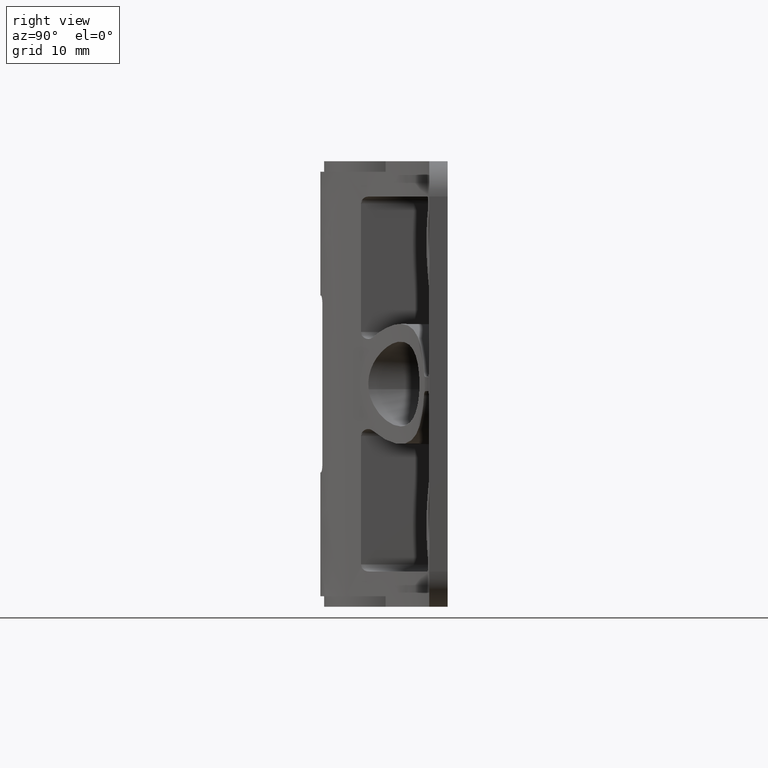
[diagram: clean part render]
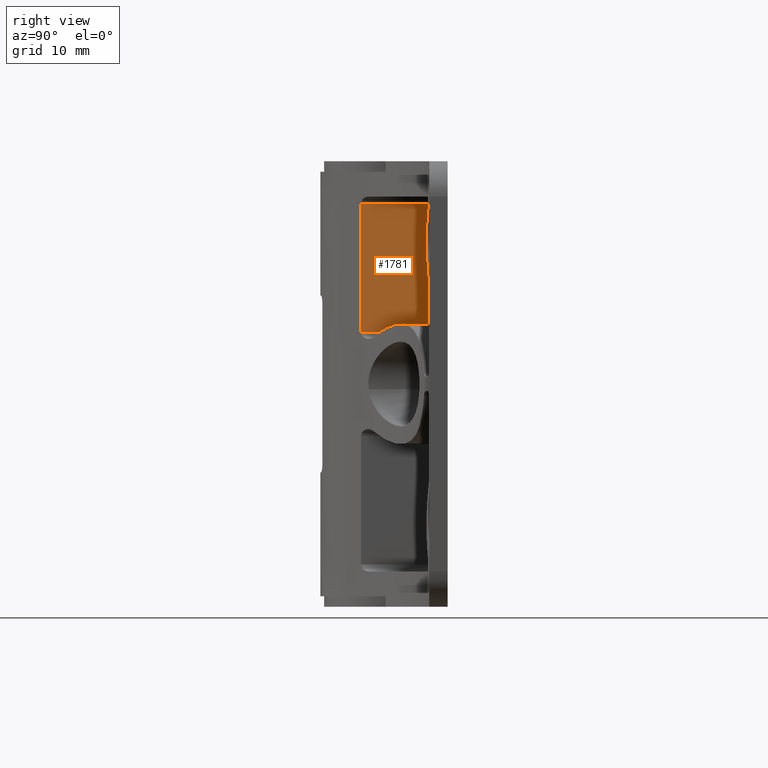
[diagram: same view with one face highlighted and labeled with its STEP entity id]
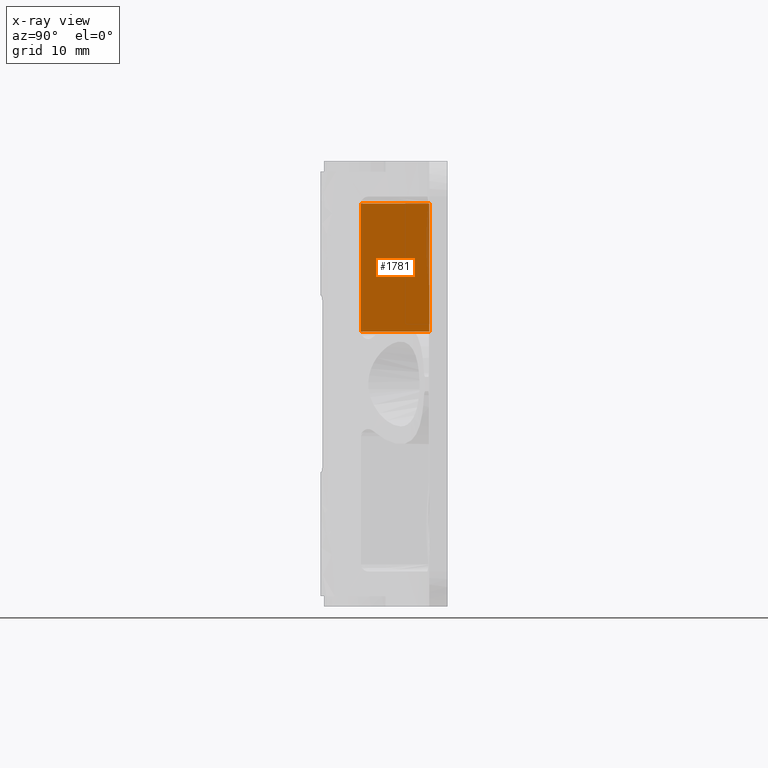
[diagram: x-ray of the same camera — body ghosted, the highlighted face saturated]
A machine part, right view. The second image highlights one B-rep face of the part: STEP entity #1781.
The next image is the same camera in x-ray: the body ghosted, the highlighted face saturated — about 2% of this face is hidden behind the body in this view.
In plain terms, the highlighted face is a freeform B-spline surface patch.
Its self-contained STEP definition (entity closure, byte-faithful):
#1095=CARTESIAN_POINT('',(9.000000000000199,6.400002000000000,57.0));
#1096=VERTEX_POINT('',#1095);
#1110=CARTESIAN_POINT('',(9.000000000000199,6.400002000000000,38.865463000000013));
#1111=VERTEX_POINT('',#1110);
#1112=CARTESIAN_POINT('',(9.000000000000199,6.400002000000000,57.0));
#1113=CARTESIAN_POINT('',(9.000000000000199,6.400002000000000,38.865463000000013));
#1114=QUASI_UNIFORM_CURVE('',1,(#1112,#1113),.UNSPECIFIED.,.F.,.U.);
#1115=EDGE_CURVE('',#1096,#1111,#1114,.T.);
#1708=CARTESIAN_POINT('',(9.000000000000199,-3.255709641153975,38.865463000000013));
#1709=VERTEX_POINT('',#1708);
#1752=CARTESIAN_POINT('',(9.000000000000199,-3.255709641153975,38.865463000000013));
#1753=CARTESIAN_POINT('',(9.000000000000199,6.400002000000000,38.865463000000013));
#1754=QUASI_UNIFORM_CURVE('',1,(#1752,#1753),.UNSPECIFIED.,.F.,.U.);
#1755=EDGE_CURVE('',#1709,#1111,#1754,.T.);
#1760=CARTESIAN_POINT('',(9.000000000000199,-3.738012418914973,57.905820023212463));
#1761=CARTESIAN_POINT('',(9.000000000000199,-3.738012418914973,37.959643787464543));
#1762=CARTESIAN_POINT('',(9.000000000000199,6.882305036747368,57.905820023212463));
#1763=CARTESIAN_POINT('',(9.000000000000199,6.882305036747368,37.959643787464543));
#1764=B_SPLINE_SURFACE_WITH_KNOTS('',1,1,((#1760,#1762),(#1761,#1763)),.UNSPECIFIED.,.F.,.F.,.U.,(2,2),(2,2),(0.0,19.946176235747910),(0.0,10.620317455662340),.UNSPECIFIED.);
#1765=CARTESIAN_POINT('',(9.000000000000199,-3.255709641153960,57.0));
#1766=VERTEX_POINT('',#1765);
#1767=CARTESIAN_POINT('',(9.000000000000199,-3.255709641153960,57.0));
#1768=CARTESIAN_POINT('',(9.000000000000199,-3.255709641153975,38.865463000000013));
#1769=QUASI_UNIFORM_CURVE('',1,(#1767,#1768),.UNSPECIFIED.,.F.,.U.);
#1770=EDGE_CURVE('',#1766,#1709,#1769,.T.);
#1771=ORIENTED_EDGE('',*,*,#1770,.T.);
#1772=ORIENTED_EDGE('',*,*,#1755,.T.);
#1773=ORIENTED_EDGE('',*,*,#1115,.F.);
#1774=CARTESIAN_POINT('',(9.000000000000199,-3.255709641153960,57.0));
#1775=CARTESIAN_POINT('',(9.000000000000199,6.400002000000000,57.0));
#1776=QUASI_UNIFORM_CURVE('',1,(#1774,#1775),.UNSPECIFIED.,.F.,.U.);
#1777=EDGE_CURVE('',#1766,#1096,#1776,.T.);
#1778=ORIENTED_EDGE('',*,*,#1777,.F.);
#1779=EDGE_LOOP('',(#1771,#1772,#1773,#1778));
#1780=FACE_OUTER_BOUND('',#1779,.T.);
#1781=ADVANCED_FACE('',(#1780),#1764,.T.);